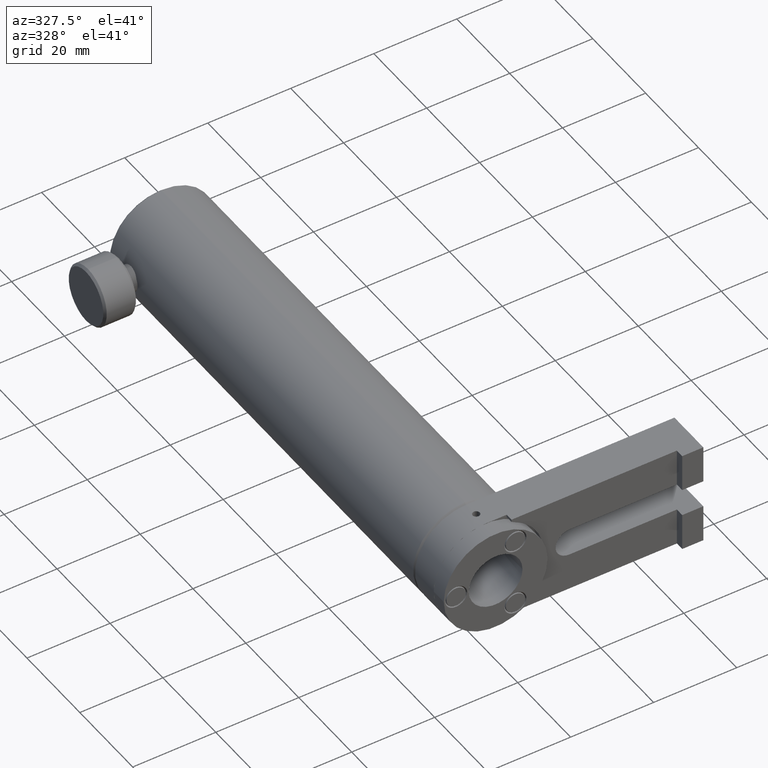
[diagram: clean part render]
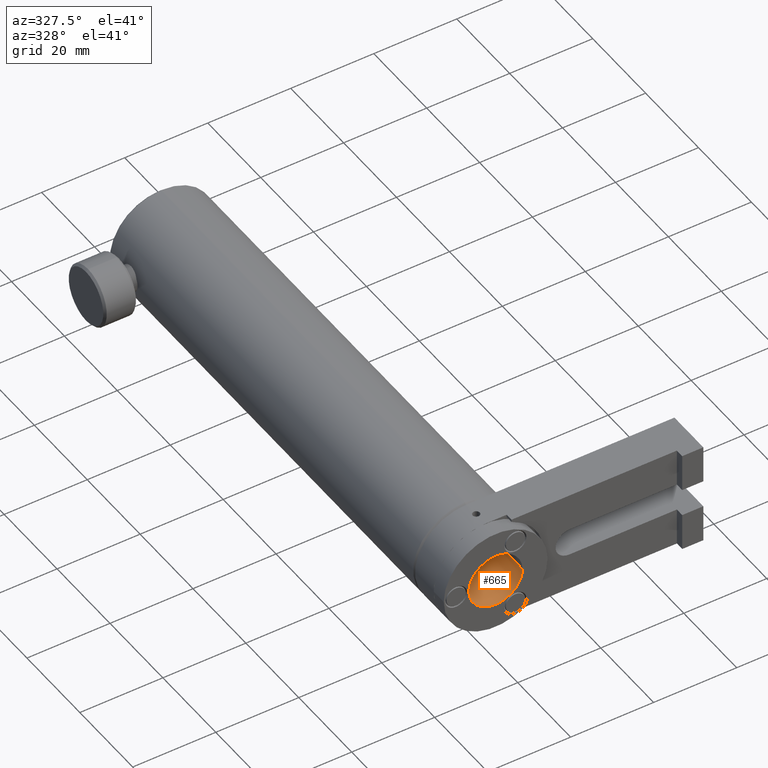
[diagram: same view with one face highlighted and labeled with its STEP entity id]
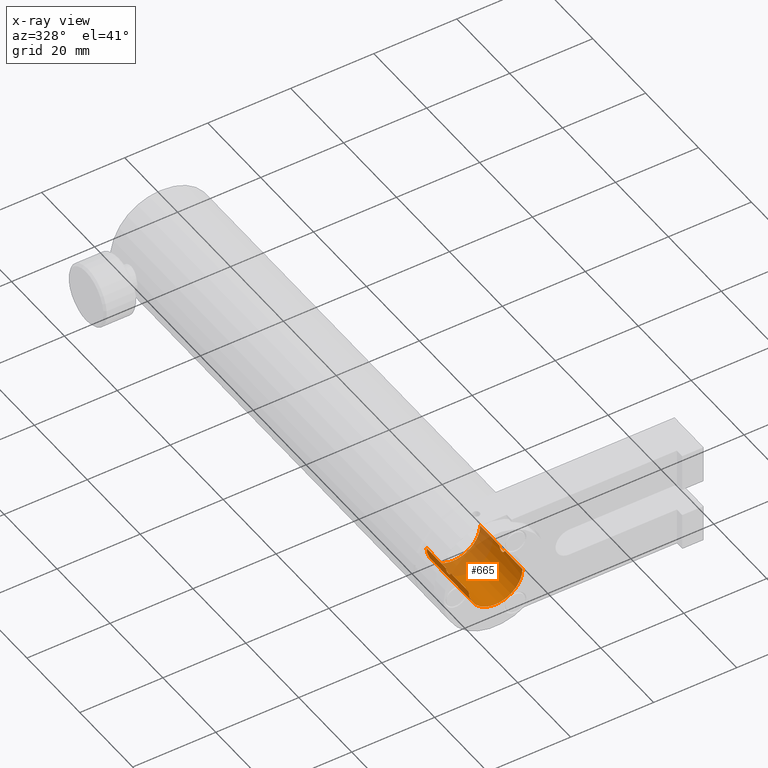
[diagram: x-ray of the same camera — body ghosted, the highlighted face saturated]
A machine part, auxiliary view. The second image highlights one B-rep face of the part: STEP entity #665.
The next image is the same camera in x-ray: the body ghosted, the highlighted face saturated — about 28% of this face is hidden behind the body in this view.
In plain terms, the highlighted cylindrical surface (edge-blend (fillet) strip) has radius 6.477 mm, axis along (0, 1, 0).
Its self-contained STEP definition (entity closure, byte-faithful):
#16 = DIRECTION ( 'NONE',  ( -1.000000000000000000, 0.0000000000000000000, -3.552366734105304900E-014 ) ) ;
#78 = CARTESIAN_POINT ( 'NONE',  ( 10.60006664389137900, 1.684934787764896800, 3.765967690818600100E-013 ) ) ;
#82 = EDGE_CURVE ( 'NONE', #3033, #2301, #557, .T. ) ;
#121 = CARTESIAN_POINT ( 'NONE',  ( 10.60006664389137900, 10.82893478776489400, 3.765967690818601100E-013 ) ) ;
#206 = CARTESIAN_POINT ( 'NONE',  ( -2.292633473788650900, 2.457784676561466200, -0.8890000000000825000 ) ) ;
#225 = CARTESIAN_POINT ( 'NONE',  ( -2.307317970403978300, 2.126660616765645000, -0.7769684580586236900 ) ) ;
#237 = CARTESIAN_POINT ( 'NONE',  ( 10.57756416844688000, 3.285366602814805400, -0.5458232989944384900 ) ) ;
#275 = CARTESIAN_POINT ( 'NONE',  ( -2.339329763125724200, 3.350667793251574700, -0.4478503503887892300 ) ) ;
#288 = VERTEX_POINT ( 'NONE', #3577 ) ;
#379 = B_SPLINE_CURVE_WITH_KNOTS ( 'NONE', 3,
 ( #939, #2089, #2693, #3215, #1154, #1736, #275, #2033, #466, #3411 ),
 .UNSPECIFIED., .F., .F.,
 ( 4, 2, 2, 2, 4 ),
 ( 0.001391681021688470100, 0.001739436585783829900, 0.002087192149879189700, 0.002434947713974549900, 0.002782703278069909600 ),
 .UNSPECIFIED. ) ;
#401 = ORIENTED_EDGE ( 'NONE', *, *, #1137, .F. ) ;
#449 = ORIENTED_EDGE ( 'NONE', *, *, #1317, .F. ) ;
#466 = CARTESIAN_POINT ( 'NONE',  ( -2.353933356108578700, 3.462934787764639000, -0.1160834768496296900 ) ) ;
#510 = CARTESIAN_POINT ( 'NONE',  ( -2.350635326720939700, 1.708155931829948800, -0.2330960469464736800 ) ) ;
#540 = CARTESIAN_POINT ( 'NONE',  ( 10.55348117825176100, 3.021781324600053800, -0.7767349445126644500 ) ) ;
#557 = LINE ( 'NONE', #1375, #3592 ) ;
#595 = CARTESIAN_POINT ( 'NONE',  ( 4.123066643891380800, 10.82893478776489400, 1.457167719820518700E-013 ) ) ;
#597 = AXIS2_PLACEMENT_3D ( 'NONE', #795, #3508, #1261 ) ;
#604 = EDGE_CURVE ( 'NONE', #3033, #288, #3594, .T. ) ;
#665 = ADVANCED_FACE ( 'NONE', ( #1281 ), #1142, .F. ) ;
#697 = CARTESIAN_POINT ( 'NONE',  ( 10.60006664389137900, 1.684934787764896800, 3.765967690818600100E-013 ) ) ;
#708 = CARTESIAN_POINT ( 'NONE',  ( -2.353933356108619100, 1.684934787764897000, -8.433794940138831300E-014 ) ) ;
#712 = CARTESIAN_POINT ( 'NONE',  ( -2.353933356110145400, 3.462934787776023300, -1.396743876756858700E-012 ) ) ;
#769 = CARTESIAN_POINT ( 'NONE',  ( 10.57746346457863300, 1.863518528122982700, -0.5468734685551206500 ) ) ;
#785 = EDGE_CURVE ( 'NONE', #1685, #3596, #379, .T. ) ;
#795 = CARTESIAN_POINT ( 'NONE',  ( 4.123066643891380800, -5.173065212235105300, 1.457167719820518700E-013 ) ) ;
#815 = CARTESIAN_POINT ( 'NONE',  ( 10.56140071543600800, 3.119592693218902200, -0.7115586774158586500 ) ) ;
#874 = VERTEX_POINT ( 'NONE', #121 ) ;
#907 = ORIENTED_EDGE ( 'NONE', *, *, #2506, .F. ) ;
#923 = VERTEX_POINT ( 'NONE', #708 ) ;
#925 = CARTESIAN_POINT ( 'NONE',  ( 10.53876676157147700, 2.573934787764893300, -0.8889999999996226500 ) ) ;
#939 = CARTESIAN_POINT ( 'NONE',  ( -2.292633473787409700, 2.573934787764406100, -0.8890000000090452200 ) ) ;
#984 = CARTESIAN_POINT ( 'NONE',  ( 4.123066643891380800, 10.82893478776489400, 1.457167719820518700E-013 ) ) ;
#990 = AXIS2_PLACEMENT_3D ( 'NONE', #595, #1463, #16 ) ;
#996 = DIRECTION ( 'NONE',  ( 0.0000000000000000000, 1.000000000000000000, 0.0000000000000000000 ) ) ;
#1049 = CARTESIAN_POINT ( 'NONE',  ( -2.353933356108614600, 1.684934787764897000, -0.1176538529103875300 ) ) ;
#1059 = CARTESIAN_POINT ( 'NONE',  ( -2.315342460842459100, 2.027529981182903700, -0.7107662629022814000 ) ) ;
#1061 = DIRECTION ( 'NONE',  ( 0.0000000000000000000, 1.000000000000000000, 0.0000000000000000000 ) ) ;
#1076 = CARTESIAN_POINT ( 'NONE',  ( -2.353933356108619100, 1.684934787764897000, -8.433794940138831300E-014 ) ) ;
#1086 = CARTESIAN_POINT ( 'NONE',  ( 10.53876676157147700, 2.573934787764893300, -0.8889999999996226500 ) ) ;
#1137 = EDGE_CURVE ( 'NONE', #288, #923, #1430, .T. ) ;
#1142 = CYLINDRICAL_SURFACE ( 'NONE', #990, 6.477000000000000300 ) ;
#1154 = CARTESIAN_POINT ( 'NONE',  ( -2.315281350966472900, 3.119754024852675800, -0.7114348000705564800 ) ) ;
#1217 = ORIENTED_EDGE ( 'NONE', *, *, #1699, .F. ) ;
#1259 = EDGE_CURVE ( 'NONE', #3596, #1905, #3010, .T. ) ;
#1261 = DIRECTION ( 'NONE',  ( -1.000000000000000000, 0.0000000000000000000, -3.552366734105304900E-014 ) ) ;
#1272 = DIRECTION ( 'NONE',  ( 0.0000000000000000000, 1.000000000000000000, 0.0000000000000000000 ) ) ;
#1281 = FACE_OUTER_BOUND ( 'NONE', #3688, .T. ) ;
#1297 = VECTOR ( 'NONE', #2712, 1000.000000000000000 ) ;
#1317 = EDGE_CURVE ( 'NONE', #1379, #2301, #2486, .T. ) ;
#1338 = CARTESIAN_POINT ( 'NONE',  ( 10.55345449918673000, 2.126605324603221700, -0.7769426771632751400 ) ) ;
#1354 = CARTESIAN_POINT ( 'NONE',  ( 10.56147533571487600, 2.027528870873269700, -0.7107759327374647600 ) ) ;
#1362 = CARTESIAN_POINT ( 'NONE',  ( -2.292633473787409700, 2.573934787764406100, -0.8890000000090452200 ) ) ;
#1375 = CARTESIAN_POINT ( 'NONE',  ( 10.60006664389138100, 10.82893478776489400, 3.765967690818602100E-013 ) ) ;
#1379 = VERTEX_POINT ( 'NONE', #925 ) ;
#1402 = CARTESIAN_POINT ( 'NONE',  ( 10.60006664389135400, 3.462934787764695400, -0.1160958163433591200 ) ) ;
#1430 = LINE ( 'NONE', #1785, #1297 ) ;
#1463 = DIRECTION ( 'NONE',  ( 0.0000000000000000000, 1.000000000000000000, 0.0000000000000000000 ) ) ;
#1570 = DIRECTION ( 'NONE',  ( -1.000000000000000000, 0.0000000000000000000, -3.552366734105304900E-014 ) ) ;
#1588 = CARTESIAN_POINT ( 'NONE',  ( 10.60006664389137900, -5.173065212235105300, 3.765967690818601100E-013 ) ) ;
#1643 = CARTESIAN_POINT ( 'NONE',  ( 10.59677290552062200, 1.708122718052808700, -0.2330062151327999000 ) ) ;
#1666 = DIRECTION ( 'NONE',  ( 0.0000000000000000000, 1.000000000000000000, 0.0000000000000000000 ) ) ;
#1685 = VERTEX_POINT ( 'NONE', #3668 ) ;
#1699 = EDGE_CURVE ( 'NONE', #923, #1685, #3583, .T. ) ;
#1736 = CARTESIAN_POINT ( 'NONE',  ( -2.331444659362095000, 3.285489353846622300, -0.5456630955220790300 ) ) ;
#1754 = ORIENTED_EDGE ( 'NONE', *, *, #604, .F. ) ;
#1755 = ORIENTED_EDGE ( 'NONE', *, *, #785, .F. ) ;
#1785 = CARTESIAN_POINT ( 'NONE',  ( -2.353933356108619100, 10.82893478776489400, -8.437002138594873400E-014 ) ) ;
#1818 = VECTOR ( 'NONE', #996, 1000.000000000000000 ) ;
#1870 = ORIENTED_EDGE ( 'NONE', *, *, #82, .T. ) ;
#1876 = ORIENTED_EDGE ( 'NONE', *, *, #3097, .T. ) ;
#1905 = VERTEX_POINT ( 'NONE', #2927 ) ;
#1966 = CARTESIAN_POINT ( 'NONE',  ( -2.339292157386634800, 1.797508938420797000, -0.4484079559468456300 ) ) ;
#1996 = AXIS2_PLACEMENT_3D ( 'NONE', #984, #1272, #1570 ) ;
#1997 = CARTESIAN_POINT ( 'NONE',  ( 10.60006664389255900, 3.462934787773486200, -6.101397910709939800E-013 ) ) ;
#2033 = CARTESIAN_POINT ( 'NONE',  ( -2.350649786499912100, 3.439816570402018900, -0.2326646441831022900 ) ) ;
#2089 = CARTESIAN_POINT ( 'NONE',  ( -2.292633473788652200, 2.690029918220298900, -0.8890000000000740600 ) ) ;
#2129 = VECTOR ( 'NONE', #1061, 1000.000000000000000 ) ;
#2301 = VERTEX_POINT ( 'NONE', #697 ) ;
#2486 = B_SPLINE_CURVE_WITH_KNOTS ( 'NONE', 3,
 ( #3108, #3142, #3693, #1338, #1354, #769, #3409, #1643, #3302, #78 ),
 .UNSPECIFIED., .F., .F.,
 ( 4, 2, 2, 2, 4 ),
 ( 0.002782701282795828300, 0.003130604781071176000, 0.003478508279346524200, 0.003826411777621871900, 0.004174315275897219600 ),
 .UNSPECIFIED. ) ;
#2506 = EDGE_CURVE ( 'NONE', #2543, #1379, #2805, .T. ) ;
#2543 = VERTEX_POINT ( 'NONE', #2563 ) ;
#2563 = CARTESIAN_POINT ( 'NONE',  ( 10.60006664389255900, 3.462934787773486200, -6.101397910709939800E-013 ) ) ;
#2604 = LINE ( 'NONE', #3627, #1818 ) ;
#2693 = CARTESIAN_POINT ( 'NONE',  ( -2.295949454246609000, 2.806579105618423100, -0.8659013694511149600 ) ) ;
#2712 = DIRECTION ( 'NONE',  ( 0.0000000000000000000, 1.000000000000000000, 0.0000000000000000000 ) ) ;
#2735 = ORIENTED_EDGE ( 'NONE', *, *, #3540, .T. ) ;
#2805 = B_SPLINE_CURVE_WITH_KNOTS ( 'NONE', 3,
 ( #1997, #1402, #2844, #3480, #237, #815, #540, #3440, #2855, #1086 ),
 .UNSPECIFIED., .F., .F.,
 ( 4, 2, 2, 2, 4 ),
 ( 0.001391679286587575300, 0.001739434785639638400, 0.002087190284691701700, 0.002434945783743765200, 0.002782701282795828300 ),
 .UNSPECIFIED. ) ;
#2844 = CARTESIAN_POINT ( 'NONE',  ( 10.59678535939234600, 3.439836217591347300, -0.2326448646585872200 ) ) ;
#2855 = CARTESIAN_POINT ( 'NONE',  ( 10.53876676157147900, 2.690018313488122800, -0.8889999999996225400 ) ) ;
#2927 = CARTESIAN_POINT ( 'NONE',  ( -2.353933356108619100, 10.82893478776489400, -8.437002138594873400E-014 ) ) ;
#3010 = LINE ( 'NONE', #3423, #2129 ) ;
#3033 = VERTEX_POINT ( 'NONE', #1588 ) ;
#3097 = EDGE_CURVE ( 'NONE', #874, #1905, #3686, .T. ) ;
#3108 = CARTESIAN_POINT ( 'NONE',  ( 10.53876676157147700, 2.573934787764893300, -0.8889999999996226500 ) ) ;
#3119 = CARTESIAN_POINT ( 'NONE',  ( -2.331321698447613900, 1.863600157849001800, -0.5469658185647463500 ) ) ;
#3139 = CARTESIAN_POINT ( 'NONE',  ( -2.295984162816225600, 2.340651364928596000, -0.8656286810699233000 ) ) ;
#3142 = CARTESIAN_POINT ( 'NONE',  ( 10.53876676157147500, 2.457801858734772100, -0.8889999999996226500 ) ) ;
#3215 = CARTESIAN_POINT ( 'NONE',  ( -2.307358124755231300, 3.021950876425407300, -0.7766531687620728000 ) ) ;
#3258 = ORIENTED_EDGE ( 'NONE', *, *, #1259, .F. ) ;
#3302 = CARTESIAN_POINT ( 'NONE',  ( 10.60006664389138300, 1.684934787764896600, -0.1175684763302868600 ) ) ;
#3409 = CARTESIAN_POINT ( 'NONE',  ( 10.58542393949339600, 1.797520211509415300, -0.4484449153770192500 ) ) ;
#3411 = CARTESIAN_POINT ( 'NONE',  ( -2.353933356110145400, 3.462934787776023300, -1.396743876756858700E-012 ) ) ;
#3423 = CARTESIAN_POINT ( 'NONE',  ( -2.353933356108619100, 10.82893478776489400, -8.437002138594873400E-014 ) ) ;
#3440 = CARTESIAN_POINT ( 'NONE',  ( 10.54208502654246600, 2.806598565896670600, -0.8658817823050213300 ) ) ;
#3480 = CARTESIAN_POINT ( 'NONE',  ( 10.58545291890307800, 3.350586348123523600, -0.4480192775091839100 ) ) ;
#3508 = DIRECTION ( 'NONE',  ( 0.0000000000000000000, 1.000000000000000000, 0.0000000000000000000 ) ) ;
#3540 = EDGE_CURVE ( 'NONE', #2543, #874, #2604, .T. ) ;
#3577 = CARTESIAN_POINT ( 'NONE',  ( -2.353933356108619100, -5.173065212235105300, -8.437002138594873400E-014 ) ) ;
#3583 = B_SPLINE_CURVE_WITH_KNOTS ( 'NONE', 3,
 ( #1076, #1049, #510, #1966, #3119, #1059, #225, #3139, #206, #1362 ),
 .UNSPECIFIED., .F., .F.,
 ( 4, 2, 2, 2, 4 ),
 ( 3.116236741932552800E-020, 0.0003479202554221178000, 0.0006958405108442354900, 0.001043760766266352800, 0.001391681021688470100 ),
 .UNSPECIFIED. ) ;
#3592 = VECTOR ( 'NONE', #1666, 1000.000000000000000 ) ;
#3594 = CIRCLE ( 'NONE', #597, 6.477000000000000300 ) ;
#3596 = VERTEX_POINT ( 'NONE', #712 ) ;
#3627 = CARTESIAN_POINT ( 'NONE',  ( 10.60006664389138100, 10.82893478776489400, 3.765967690818602100E-013 ) ) ;
#3668 = CARTESIAN_POINT ( 'NONE',  ( -2.292633473787409700, 2.573934787764406100, -0.8890000000090452200 ) ) ;
#3686 = CIRCLE ( 'NONE', #1996, 6.477000000000000300 ) ;
#3688 = EDGE_LOOP ( 'NONE', ( #1754, #1870, #449, #907, #2735, #1876, #3258, #1755, #1217, #401 ) ) ;
#3693 = CARTESIAN_POINT ( 'NONE',  ( 10.54211620212188700, 2.340669037810438900, -0.8656388751137895600 ) ) ;